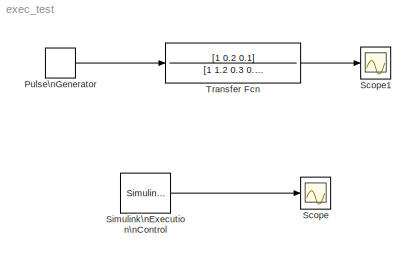
MODEL exec_test
KIND model
BLOCK [DiscretePulseGenerator] Pulse\nGenerator
  Amplitude = 1
  Period = 1
  PhaseDelay = 0
  Ports = [0, 1]
  PulseType = Time based
  PulseWidth = 50
  SampleTime = 1
BLOCK [Scope] Scope
  DataFormat = StructureWithTime
  Floating = off
  NumInputPorts = 1
  Ports = [1]
  SampleTime = 0
  YMax = 3
  YMin = 0
BLOCK [Scope] Scope1
  DataFormat = StructureWithTime
  Floating = off
  NumInputPorts = 1
  Ports = [1]
  SampleTime = 0
  SaveName = ScopeData1
BLOCK [Reference] Simulink\nExecution\nControl  REF=SimulinkExecutionControl/Simulink\nExecution\nControl
  FunctionWithSeparateData = off
  Ports = [0, 1]
  RTWMemSecDataConstants = Inherit from model
  RTWMemSecDataInternal = Inherit from model
  RTWMemSecDataParameters = Inherit from model
  RTWMemSecFuncExecute = Inherit from model
  RTWMemSecFuncInitTerm = Inherit from model
  ShowPortLabels = FromPortIcon
  SourceBlock = SimulinkExecutionControl/Simulink\nExecution\nControl
  SourceType = Simulink Execution Control V2.0
  SystemSampleTime = -1
  Ts = 1e-3
  factor = 1
  ovrrun = Continue execution
  proc_pri = NORMAL_PRIORITY_CLASS
  rt_sim = on
  thread_pri = THREAD_PRIORITY_NORMAL
BLOCK [TransferFcn] Transfer Fcn
  Denominator = [1 1.2 0.3 0.1]
  Numerator = [1 0.2 0.1]
LINE Pulse\nGenerator:1 -> Transfer Fcn:1
LINE Simulink\nExecution\nControl:1 -> Scope:1
LINE Transfer Fcn:1 -> Scope1:1
